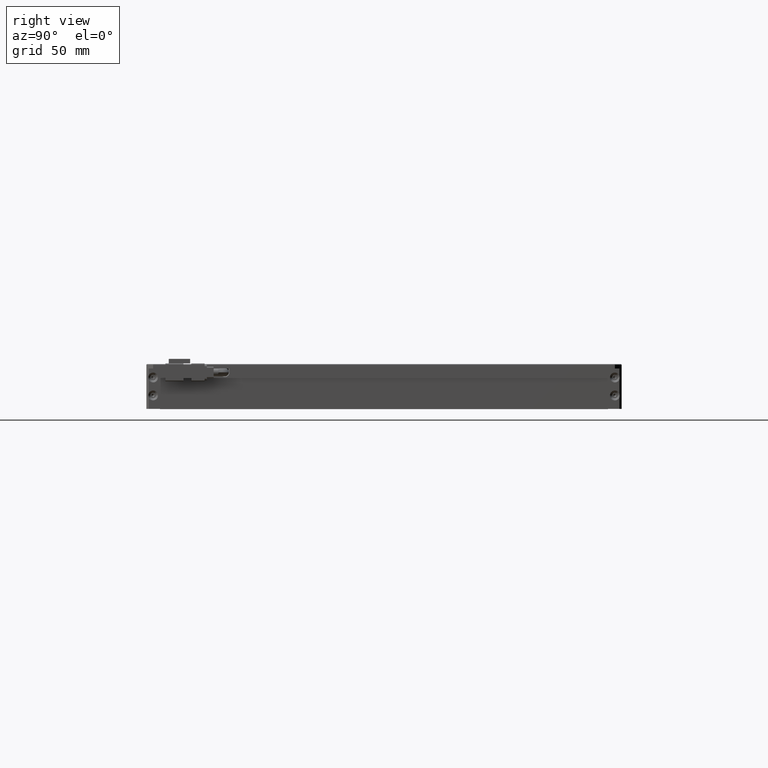
[diagram: clean part render]
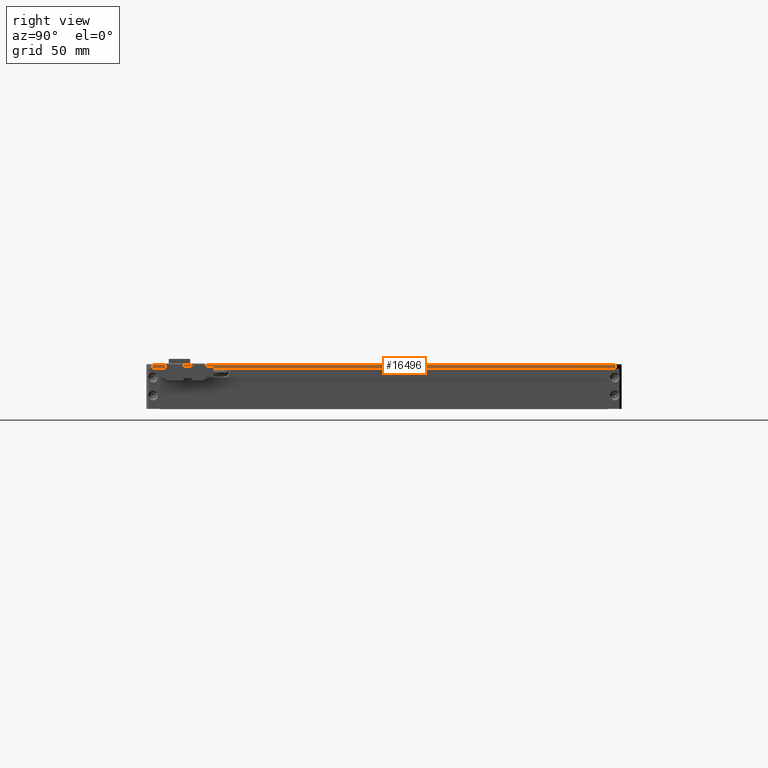
[diagram: same view with one face highlighted and labeled with its STEP entity id]
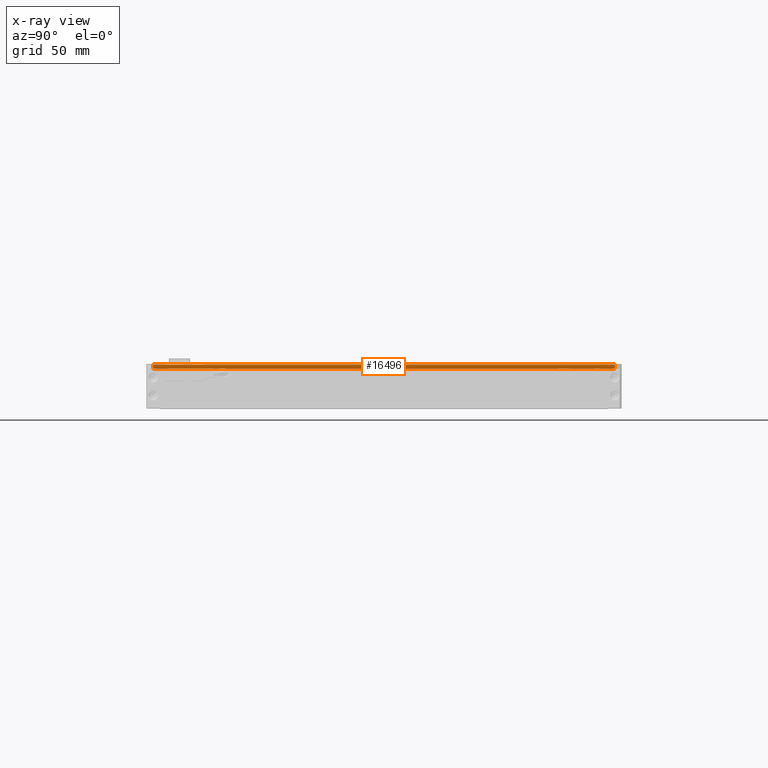
[diagram: x-ray of the same camera — body ghosted, the highlighted face saturated]
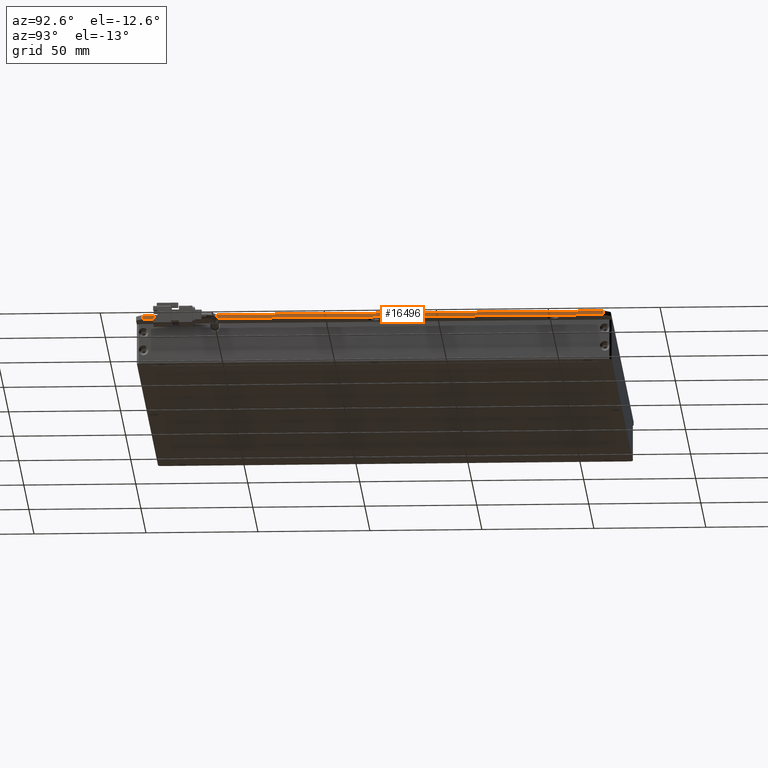
[diagram: same view with one face highlighted and labeled with its STEP entity id]
A machine part, right view. The second image highlights one B-rep face of the part: STEP entity #16496.
The next image is the same camera in x-ray: the body ghosted, the highlighted face saturated — about 0% of this face is hidden behind the body in this view.
A second angle (auxiliary view) of the same face is appended — the face is thin or edge-on in the first view.
In plain terms, the highlighted planar face has unit normal (-1, -0, 0).
Its self-contained STEP definition (entity closure, byte-faithful):
#75 = EDGE_CURVE ( 'NONE', #14387, #9967, #22403, .T. ) ;
#768 = DIRECTION ( 'NONE',  ( 0.0000000000000000000, 0.0000000000000000000, 1.000000000000000000 ) ) ;
#883 = VECTOR ( 'NONE', #17797, 1000.000000000000000 ) ;
#1093 = VECTOR ( 'NONE', #768, 1000.000000000000000 ) ;
#2055 = CARTESIAN_POINT ( 'NONE',  ( 133.6657505824761400, -136.3787539827808100, 1.999999999976353100 ) ) ;
#2189 = EDGE_CURVE ( 'NONE', #3362, #14387, #14725, .T. ) ;
#2292 = EDGE_LOOP ( 'NONE', ( #15133, #9013, #7942, #11049 ) ) ;
#3362 = VERTEX_POINT ( 'NONE', #8905 ) ;
#3652 = VECTOR ( 'NONE', #22129, 1000.000000000000000 ) ;
#4246 = VERTEX_POINT ( 'NONE', #17746 ) ;
#4473 = CARTESIAN_POINT ( 'NONE',  ( 133.6657505824761400, -136.3787539827808100, 1.999999999976353100 ) ) ;
#6242 = DIRECTION ( 'NONE',  ( 2.694716079187273400E-016, -1.000000000000000000, 0.0000000000000000000 ) ) ;
#7514 = EDGE_CURVE ( 'NONE', #4246, #9967, #14919, .T. ) ;
#7907 = PLANE ( 'NONE',  #17420 ) ;
#7942 = ORIENTED_EDGE ( 'NONE', *, *, #16654, .T. ) ;
#8398 = CARTESIAN_POINT ( 'NONE',  ( 133.6657505824761100, 69.62124601721916400, 1.699999999976318900 ) ) ;
#8905 = CARTESIAN_POINT ( 'NONE',  ( 133.6657505824761400, -136.3787539827808100, -2.364753358408133700E-011 ) ) ;
#9013 = ORIENTED_EDGE ( 'NONE', *, *, #2189, .F. ) ;
#9967 = VERTEX_POINT ( 'NONE', #8398 ) ;
#11049 = ORIENTED_EDGE ( 'NONE', *, *, #7514, .T. ) ;
#13425 = CARTESIAN_POINT ( 'NONE',  ( 133.6657505824761100, -136.3787539827808100, 1.699999999976331600 ) ) ;
#13451 = LINE ( 'NONE', #20352, #3652 ) ;
#14387 = VERTEX_POINT ( 'NONE', #13425 ) ;
#14725 = LINE ( 'NONE', #2055, #883 ) ;
#14919 = LINE ( 'NONE', #19778, #1093 ) ;
#15133 = ORIENTED_EDGE ( 'NONE', *, *, #75, .F. ) ;
#16241 = CARTESIAN_POINT ( 'NONE',  ( 133.6657505824761400, -136.3787539827808100, 1.699999999976330700 ) ) ;
#16496 = ADVANCED_FACE ( 'NONE', ( #18287 ), #7907, .F. ) ;
#16578 = DIRECTION ( 'NONE',  ( -1.000000000000000000, -2.694716079187273400E-016, 0.0000000000000000000 ) ) ;
#16654 = EDGE_CURVE ( 'NONE', #3362, #4246, #13451, .T. ) ;
#17420 = AXIS2_PLACEMENT_3D ( 'NONE', #4473, #16578, #6242 ) ;
#17746 = CARTESIAN_POINT ( 'NONE',  ( 133.6657505824761100, 69.62124601721913600, -2.364720832342959200E-011 ) ) ;
#17797 = DIRECTION ( 'NONE',  ( 0.0000000000000000000, 0.0000000000000000000, 1.000000000000000000 ) ) ;
#18287 = FACE_OUTER_BOUND ( 'NONE', #2292, .T. ) ;
#19778 = CARTESIAN_POINT ( 'NONE',  ( 133.6657505824760800, 69.62124601721916400, 1.999999999976353100 ) ) ;
#19962 = VECTOR ( 'NONE', #21654, 1000.000000000000000 ) ;
#20352 = CARTESIAN_POINT ( 'NONE',  ( 133.6657505824761400, 72.62124601721916400, -2.364688306277784600E-011 ) ) ;
#21654 = DIRECTION ( 'NONE',  ( -2.694716079187273400E-016, 1.000000000000000000, -0.0000000000000000000 ) ) ;
#22129 = DIRECTION ( 'NONE',  ( 0.0000000000000000000, 1.000000000000000000, 0.0000000000000000000 ) ) ;
#22403 = LINE ( 'NONE', #16241, #19962 ) ;